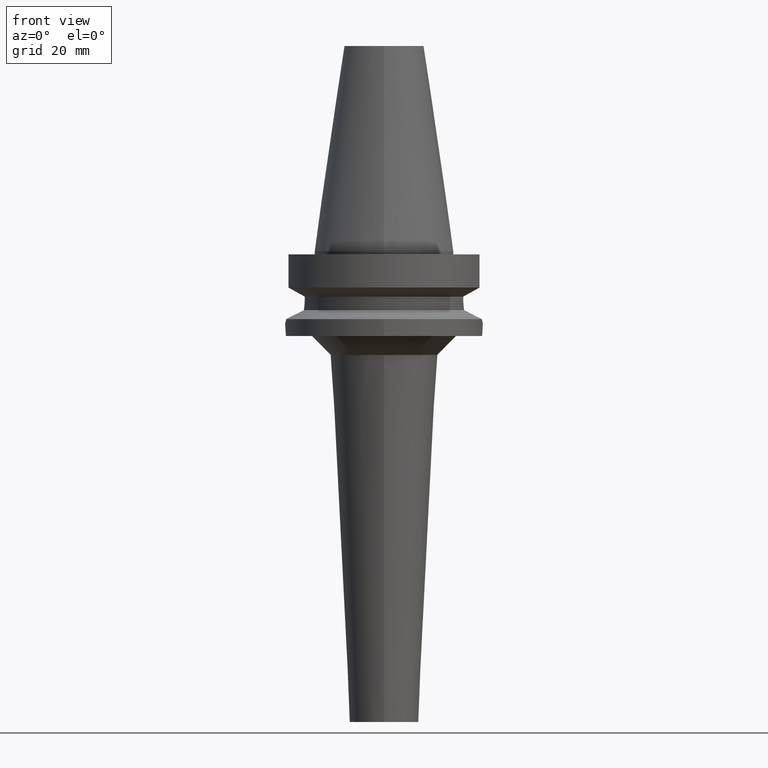
[diagram: clean part render]
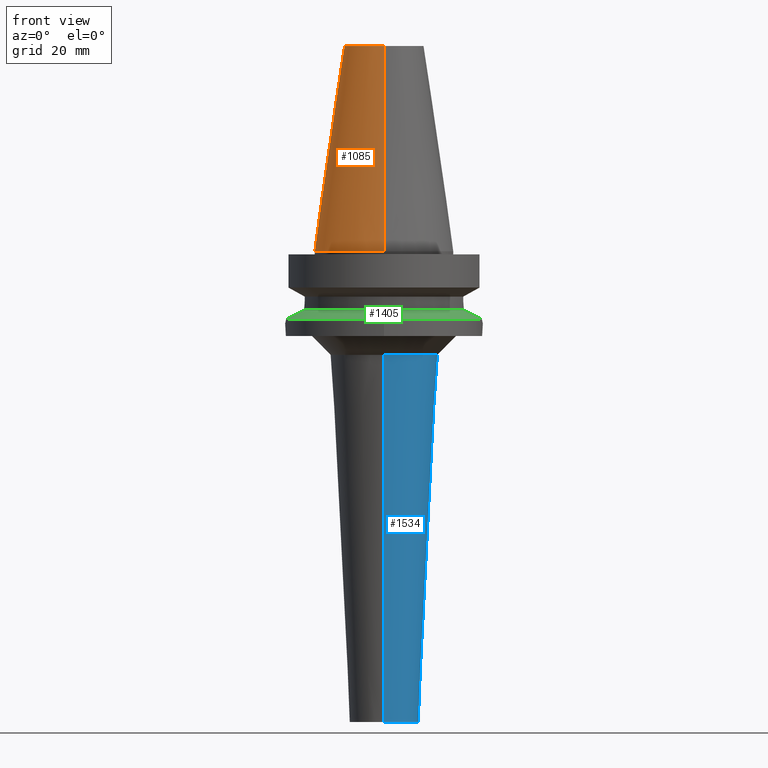
[diagram: same view with three faces highlighted in distinct colors, each labeled with its STEP entity id]
A machine part, front view with three faces highlighted in distinct colors.
Their STEP definitions:

[orange] entity #1085 — the highlighted conical surface has half-angle 8.297 deg.
#17=CARTESIAN_POINT('',(0.E0,1.625106302469E-14,6.54E1));
#18=DIRECTION('',(0.E0,0.E0,-1.E0));
#19=DIRECTION('',(0.E0,-1.E0,0.E0));
#20=AXIS2_PLACEMENT_3D('',#17,#18,#19);
#50=DIRECTION('',(0.E0,-1.443043893540E-1,-9.895333461856E-1));
#51=VECTOR('',#50,6.609175956738E1);
#52=CARTESIAN_POINT('',(0.E0,-1.268766899430E1,6.54E1));
#53=LINE('',#52,#51);
#57=CARTESIAN_POINT('',(0.E0,1.625106302469E-14,2.842170943040E-14));
#58=DIRECTION('',(0.E0,0.E0,-1.E0));
#59=DIRECTION('',(0.E0,-1.E0,0.E0));
#60=AXIS2_PLACEMENT_3D('',#57,#58,#59);
#65=DIRECTION('',(0.E0,1.443043893540E-1,-9.895333461856E-1));
#66=VECTOR('',#65,6.609175956738E1);
#67=CARTESIAN_POINT('',(0.E0,1.268766899430E1,6.54E1));
#68=LINE('',#67,#66);
#912=CARTESIAN_POINT('',(0.E0,-1.268766899430E1,6.54E1));
#913=CARTESIAN_POINT('',(0.E0,1.268766899430E1,6.54E1));
#914=VERTEX_POINT('',#912);
#915=VERTEX_POINT('',#913);
#1041=CARTESIAN_POINT('',(0.E0,2.2225E1,6.394884621841E-14));
#1042=VERTEX_POINT('',#1041);
#1043=CARTESIAN_POINT('',(0.E0,-2.2225E1,6.394884621841E-14));
#1044=VERTEX_POINT('',#1043);
#1071=CARTESIAN_POINT('',(0.E0,1.625106302469E-14,3.27E1));
#1072=DIRECTION('',(0.E0,0.E0,-1.E0));
#1073=DIRECTION('',(0.E0,-1.E0,0.E0));
#1074=AXIS2_PLACEMENT_3D('',#1071,#1072,#1073);
#1075=CONICAL_SURFACE('',#1074,1.745633449715E1,8.297E0);
#1077=ORIENTED_EDGE('',*,*,#1076,.F.);
#1078=ORIENTED_EDGE('',*,*,#1058,.F.);
#1080=ORIENTED_EDGE('',*,*,#1079,.T.);
#1082=ORIENTED_EDGE('',*,*,#1081,.T.);
#1083=EDGE_LOOP('',(#1077,#1078,#1080,#1082));
#1084=FACE_OUTER_BOUND('',#1083,.F.);
#21=CIRCLE('',#20,1.268766899430E1);
#61=CIRCLE('',#60,2.2225E1);
#1058=EDGE_CURVE('',#914,#915,#21,.T.);
#1076=EDGE_CURVE('',#915,#1042,#68,.T.);
#1079=EDGE_CURVE('',#914,#1044,#53,.T.);
#1081=EDGE_CURVE('',#1044,#1042,#61,.T.);
#1085=ADVANCED_FACE('',(#1084),#1075,.T.);

[blue] entity #1534 — the highlighted conical surface has half-angle 3 deg.
#676=DIRECTION('',(0.E0,-5.233595624296E-2,-9.986295347546E-1));
#677=VECTOR('',#676,1.171605644818E2);
#678=CARTESIAN_POINT('',(0.E0,1.713171017612E1,-3.3E1));
#679=LINE('',#678,#677);
#683=CARTESIAN_POINT('',(0.E0,0.E0,-3.3E1));
#684=DIRECTION('',(0.E0,0.E0,1.E0));
#685=DIRECTION('',(0.E0,-1.E0,0.E0));
#686=AXIS2_PLACEMENT_3D('',#683,#684,#685);
#691=DIRECTION('',(0.E0,5.233595624296E-2,-9.986295347546E-1));
#692=VECTOR('',#691,1.171605644818E2);
#693=CARTESIAN_POINT('',(0.E0,-1.713171017612E1,-3.3E1));
#694=LINE('',#693,#692);
#698=CARTESIAN_POINT('',(0.E0,0.E0,-1.5E2));
#699=DIRECTION('',(0.E0,0.E0,1.E0));
#700=DIRECTION('',(0.E0,-1.E0,0.E0));
#701=AXIS2_PLACEMENT_3D('',#698,#699,#700);
#952=CARTESIAN_POINT('',(0.E0,-1.1E1,-1.5E2));
#953=CARTESIAN_POINT('',(0.E0,1.1E1,-1.5E2));
#954=VERTEX_POINT('',#952);
#955=VERTEX_POINT('',#953);
#956=CARTESIAN_POINT('',(0.E0,1.713171017612E1,-3.3E1));
#957=VERTEX_POINT('',#956);
#958=CARTESIAN_POINT('',(0.E0,-1.713171017612E1,-3.3E1));
#959=VERTEX_POINT('',#958);
#1520=CARTESIAN_POINT('',(0.E0,0.E0,-9.15E1));
#1521=DIRECTION('',(0.E0,0.E0,1.E0));
#1522=DIRECTION('',(0.E0,1.E0,0.E0));
#1523=AXIS2_PLACEMENT_3D('',#1520,#1521,#1522);
#1524=CONICAL_SURFACE('',#1523,1.406585508806E1,3.E0);
#1526=ORIENTED_EDGE('',*,*,#1525,.T.);
#1528=ORIENTED_EDGE('',*,*,#1527,.F.);
#1530=ORIENTED_EDGE('',*,*,#1529,.F.);
#1531=ORIENTED_EDGE('',*,*,#1513,.T.);
#1532=EDGE_LOOP('',(#1526,#1528,#1530,#1531));
#1533=FACE_OUTER_BOUND('',#1532,.F.);
#687=CIRCLE('',#686,1.713171017612E1);
#702=CIRCLE('',#701,1.1E1);
#1513=EDGE_CURVE('',#959,#957,#687,.T.);
#1525=EDGE_CURVE('',#957,#955,#679,.T.);
#1527=EDGE_CURVE('',#954,#955,#702,.T.);
#1529=EDGE_CURVE('',#959,#954,#694,.T.);
#1534=ADVANCED_FACE('',(#1533),#1524,.T.);

[green] entity #1405 — the highlighted conical surface has half-angle 60 deg.
#458=CARTESIAN_POINT('',(-3.117899877609E1,-4.485536235554E0,
-2.163449434733E1));
#459=CARTESIAN_POINT('',(-3.064885916856E1,-4.887736533705E0,
-2.136460347488E1));
#460=CARTESIAN_POINT('',(-2.950578992837E1,-5.597523311112E0,
-2.078213674500E1));
#461=CARTESIAN_POINT('',(-2.770526559912E1,-6.417822246693E0,
-1.986248747885E1));
#462=CARTESIAN_POINT('',(-2.628256180244E1,-6.891477426449E0,
-1.913346968934E1));
#463=CARTESIAN_POINT('',(-2.553175183775E1,-7.097862220093E0,
-1.874774300139E1));
#468=CARTESIAN_POINT('',(0.E0,0.E0,-1.874774300139E1));
#469=DIRECTION('',(0.E0,0.E0,1.E0));
#470=DIRECTION('',(-9.634623335001E-1,-2.678438573620E-1,0.E0));
#471=AXIS2_PLACEMENT_3D('',#468,#469,#470);
#476=CARTESIAN_POINT('',(0.E0,0.E0,-1.874774300139E1));
#477=DIRECTION('',(0.E0,0.E0,1.E0));
#478=DIRECTION('',(0.E0,-1.E0,0.E0));
#479=AXIS2_PLACEMENT_3D('',#476,#477,#478);
#484=CARTESIAN_POINT('',(2.553175183775E1,-7.097862220093E0,-1.874774300139E1));
#485=CARTESIAN_POINT('',(2.631980732396E1,-6.881239270811E0,-1.915260448021E1));
#486=CARTESIAN_POINT('',(2.779067636775E1,-6.386584007005E0,-1.990619770135E1));
#487=CARTESIAN_POINT('',(2.960214055152E1,-5.544969082454E0,-2.083127196154E1));
#488=CARTESIAN_POINT('',(3.068675739268E1,-4.858984339335E0,-2.138389723189E1));
#489=CARTESIAN_POINT('',(3.117899877609E1,-4.485536235554E0,-2.163449434733E1));
#494=CARTESIAN_POINT('',(0.E0,0.E0,-2.163449434733E1));
#495=DIRECTION('',(0.E0,0.E0,-1.E0));
#496=DIRECTION('',(9.898094849553E-1,-1.423979757319E-1,0.E0));
#497=AXIS2_PLACEMENT_3D('',#494,#495,#496);
#502=CARTESIAN_POINT('',(0.E0,0.E0,-2.163449434733E1));
#503=DIRECTION('',(0.E0,0.E0,-1.E0));
#504=DIRECTION('',(0.E0,-1.E0,0.E0));
#505=AXIS2_PLACEMENT_3D('',#502,#503,#504);
#524=CARTESIAN_POINT('',(3.117899877609E1,-4.485536235554E0,-2.163449434733E1));
#970=VERTEX_POINT('',#524);
#973=CARTESIAN_POINT('',(0.E0,-3.15E1,-2.163449434733E1));
#974=VERTEX_POINT('',#973);
#975=VERTEX_POINT('',#484);
#986=VERTEX_POINT('',#458);
#987=VERTEX_POINT('',#463);
#988=CARTESIAN_POINT('',(0.E0,-2.65E1,-1.874774300139E1));
#989=VERTEX_POINT('',#988);
#1389=CARTESIAN_POINT('',(0.E0,0.E0,-2.019111867436E1));
#1390=DIRECTION('',(0.E0,0.E0,-1.E0));
#1391=DIRECTION('',(0.E0,-1.E0,0.E0));
#1392=AXIS2_PLACEMENT_3D('',#1389,#1390,#1391);
#1393=CONICAL_SURFACE('',#1392,2.9E1,6.E1);
#1394=ORIENTED_EDGE('',*,*,#1374,.T.);
#1395=ORIENTED_EDGE('',*,*,#1210,.T.);
#1396=ORIENTED_EDGE('',*,*,#1208,.T.);
#1398=ORIENTED_EDGE('',*,*,#1397,.T.);
#1400=ORIENTED_EDGE('',*,*,#1399,.T.);
#1402=ORIENTED_EDGE('',*,*,#1401,.T.);
#1403=EDGE_LOOP('',(#1394,#1395,#1396,#1398,#1400,#1402));
#1404=FACE_OUTER_BOUND('',#1403,.F.);
#464=B_SPLINE_CURVE_WITH_KNOTS('',3,(#458,#459,#460,#461,#462,#463),
.UNSPECIFIED.,.F.,.F.,(4,1,1,4),(0.E0,3.333333333333E-1,6.666666666667E-1,1.E0),
.UNSPECIFIED.);
#472=CIRCLE('',#471,2.65E1);
#480=CIRCLE('',#479,2.65E1);
#490=B_SPLINE_CURVE_WITH_KNOTS('',3,(#484,#485,#486,#487,#488,#489),
.UNSPECIFIED.,.F.,.F.,(4,1,1,4),(0.E0,3.333333333333E-1,6.666666666667E-1,1.E0),
.UNSPECIFIED.);
#498=CIRCLE('',#497,3.15E1);
#506=CIRCLE('',#505,3.15E1);
#1208=EDGE_CURVE('',#989,#975,#480,.T.);
#1210=EDGE_CURVE('',#987,#989,#472,.T.);
#1374=EDGE_CURVE('',#986,#987,#464,.T.);
#1397=EDGE_CURVE('',#975,#970,#490,.T.);
#1399=EDGE_CURVE('',#970,#974,#498,.T.);
#1401=EDGE_CURVE('',#974,#986,#506,.T.);
#1405=ADVANCED_FACE('',(#1404),#1393,.T.);